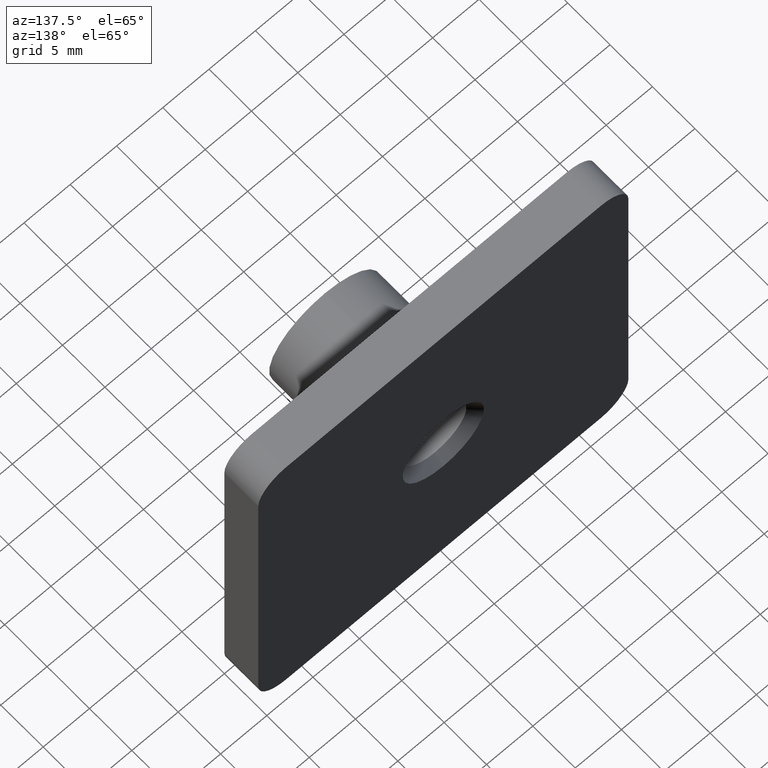
[diagram: clean part render]
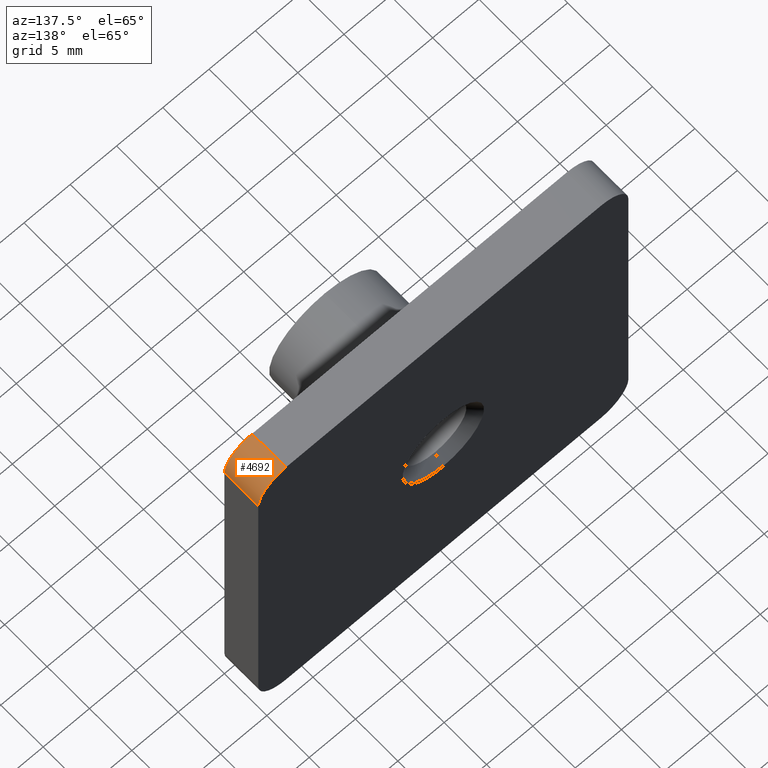
[diagram: same view with one face highlighted and labeled with its STEP entity id]
A machine part, auxiliary view. The second image highlights one B-rep face of the part: STEP entity #4692.
In plain terms, the highlighted cylindrical surface (partial cylindrical patch) has radius 3 mm, axis along (0, -1, 0).
Its self-contained STEP definition (entity closure, byte-faithful):
#387 = CARTESIAN_POINT ( 'NONE',  ( 16.99999999999999600, 4.000000000000000000, 16.99999999999999600 ) ) ;
#421 = CARTESIAN_POINT ( 'NONE',  ( 17.00000000000000000, 4.000000000000000000, 20.00000000000000000 ) ) ;
#746 = CIRCLE ( 'NONE', #17265, 2.999999999999999100 ) ;
#3219 = CARTESIAN_POINT ( 'NONE',  ( 17.00000000000000000, 0.0000000000000000000, 20.00000000000000000 ) ) ;
#3823 = CIRCLE ( 'NONE', #3985, 2.999999999999999100 ) ;
#3866 = DIRECTION ( 'NONE',  ( -0.0000000000000000000, 1.000000000000000000, -0.0000000000000000000 ) ) ;
#3985 = AXIS2_PLACEMENT_3D ( 'NONE', #387, #18081, #11962 ) ;
#4101 = CYLINDRICAL_SURFACE ( 'NONE', #12919, 2.999999999999999100 ) ;
#4692 = ADVANCED_FACE ( 'NONE', ( #8428 ), #4101, .T. ) ;
#5173 = DIRECTION ( 'NONE',  ( -1.156482317317871700E-015, 0.0000000000000000000, 1.000000000000000000 ) ) ;
#5557 = CARTESIAN_POINT ( 'NONE',  ( 19.99999999999999600, 4.000000000000000000, 16.99999999999999600 ) ) ;
#7012 = DIRECTION ( 'NONE',  ( 0.0000000000000000000, -1.000000000000000000, 0.0000000000000000000 ) ) ;
#7030 = EDGE_CURVE ( 'NONE', #7574, #17671, #3823, .T. ) ;
#7120 = EDGE_CURVE ( 'NONE', #17671, #10730, #16716, .T. ) ;
#7574 = VERTEX_POINT ( 'NONE', #421 ) ;
#8428 = FACE_OUTER_BOUND ( 'NONE', #17064, .T. ) ;
#8513 = CARTESIAN_POINT ( 'NONE',  ( 17.00000000000000000, 4.000000000000000000, 20.00000000000000000 ) ) ;
#9783 = CARTESIAN_POINT ( 'NONE',  ( 16.99999999999999600, 4.000000000000000000, 16.99999999999999600 ) ) ;
#10466 = VERTEX_POINT ( 'NONE', #3219 ) ;
#10513 = CARTESIAN_POINT ( 'NONE',  ( 19.99999999999999600, 4.000000000000000000, 16.99999999999999600 ) ) ;
#10730 = VERTEX_POINT ( 'NONE', #18586 ) ;
#10947 = ORIENTED_EDGE ( 'NONE', *, *, #17124, .F. ) ;
#11910 = ORIENTED_EDGE ( 'NONE', *, *, #7120, .F. ) ;
#11962 = DIRECTION ( 'NONE',  ( 0.0000000000000000000, 0.0000000000000000000, 1.000000000000000000 ) ) ;
#12919 = AXIS2_PLACEMENT_3D ( 'NONE', #9783, #18634, #17028 ) ;
#13441 = VECTOR ( 'NONE', #3866, 1000.000000000000000 ) ;
#13592 = ORIENTED_EDGE ( 'NONE', *, *, #7030, .F. ) ;
#13855 = CARTESIAN_POINT ( 'NONE',  ( 16.99999999999999600, 0.0000000000000000000, 16.99999999999999600 ) ) ;
#13980 = DIRECTION ( 'NONE',  ( -0.0000000000000000000, -1.000000000000000000, -0.0000000000000000000 ) ) ;
#14554 = LINE ( 'NONE', #8513, #13441 ) ;
#15195 = ORIENTED_EDGE ( 'NONE', *, *, #16389, .F. ) ;
#16389 = EDGE_CURVE ( 'NONE', #10466, #7574, #14554, .T. ) ;
#16474 = VECTOR ( 'NONE', #7012, 1000.000000000000000 ) ;
#16716 = LINE ( 'NONE', #5557, #16474 ) ;
#17028 = DIRECTION ( 'NONE',  ( 0.0000000000000000000, 0.0000000000000000000, -1.000000000000000000 ) ) ;
#17064 = EDGE_LOOP ( 'NONE', ( #13592, #15195, #10947, #11910 ) ) ;
#17124 = EDGE_CURVE ( 'NONE', #10730, #10466, #746, .T. ) ;
#17265 = AXIS2_PLACEMENT_3D ( 'NONE', #13855, #13980, #5173 ) ;
#17671 = VERTEX_POINT ( 'NONE', #10513 ) ;
#18081 = DIRECTION ( 'NONE',  ( 0.0000000000000000000, 1.000000000000000000, 0.0000000000000000000 ) ) ;
#18586 = CARTESIAN_POINT ( 'NONE',  ( 19.99999999999999600, 0.0000000000000000000, 16.99999999999999600 ) ) ;
#18634 = DIRECTION ( 'NONE',  ( 0.0000000000000000000, -1.000000000000000000, 0.0000000000000000000 ) ) ;